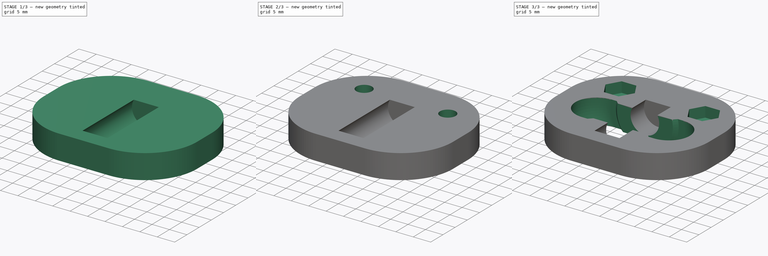
[diagram: build sequence overview — one tinted view per stage of 3, left to right]
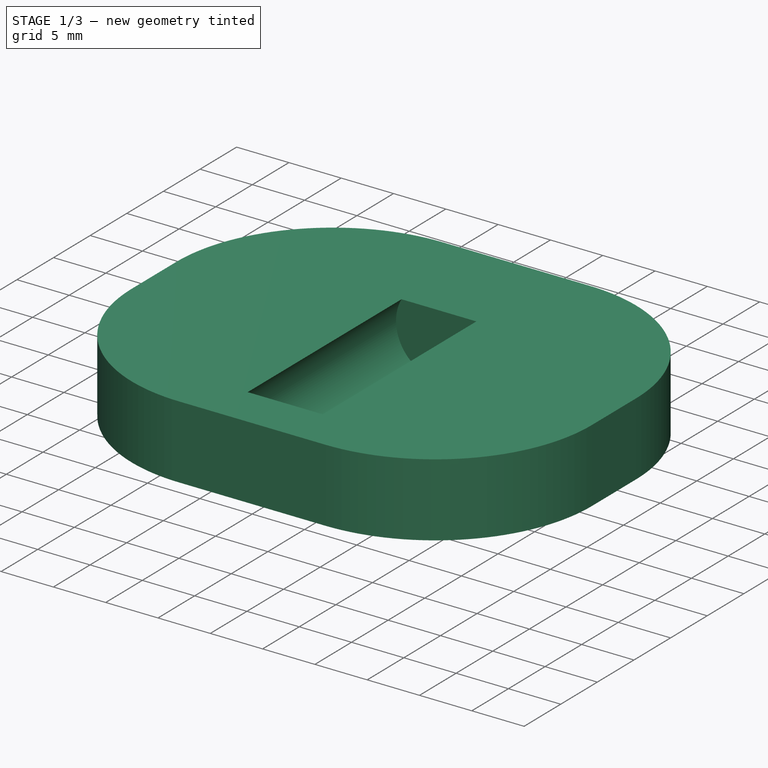
[diagram: stage 1 of 3 — iso view after this stage's code; geometry added in this stage tinted green]
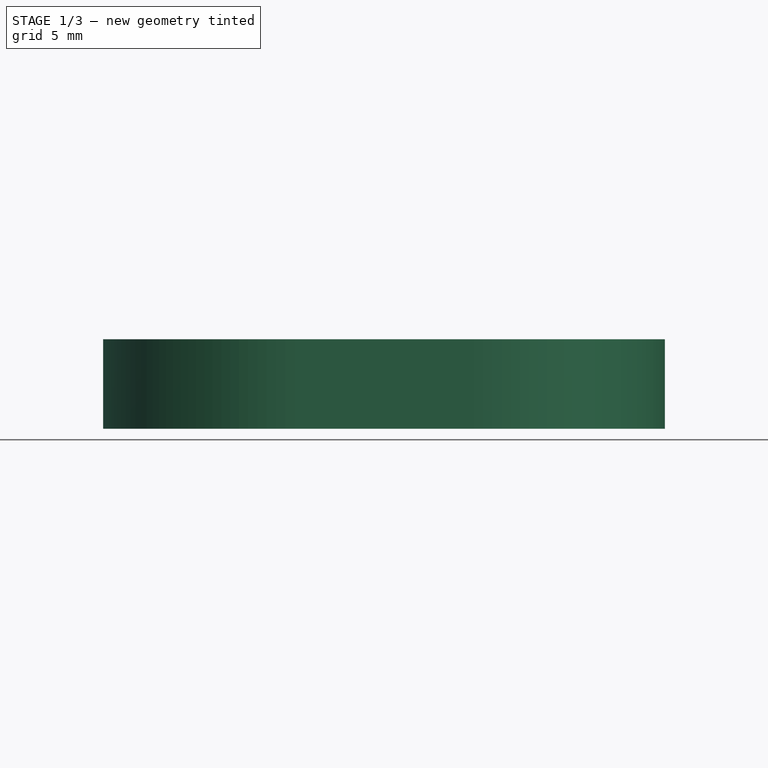
[diagram: stage 1 of 3 — front view after this stage's code; geometry added in this stage tinted green]
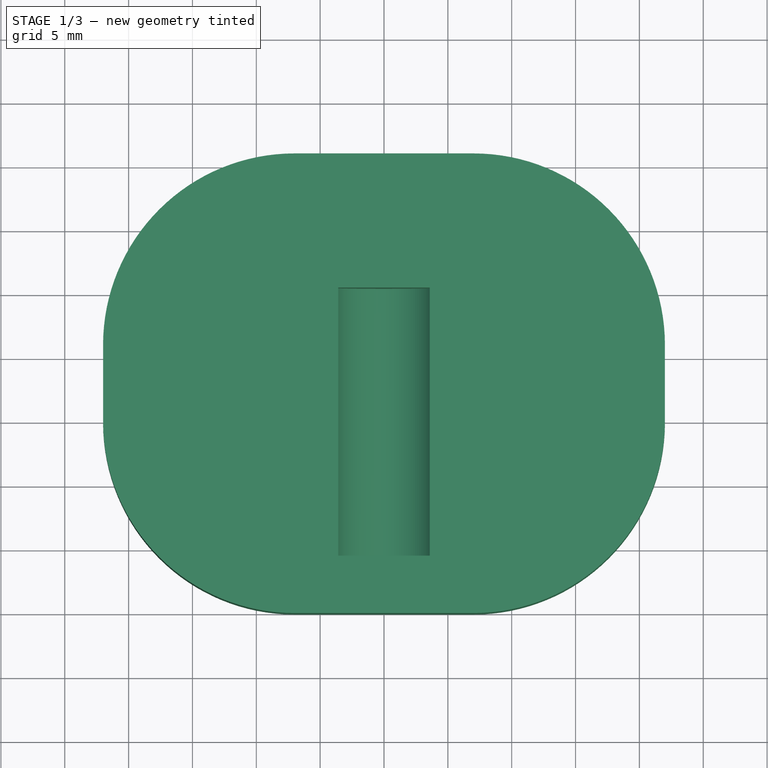
[diagram: stage 1 of 3 — top view after this stage's code; geometry added in this stage tinted green]
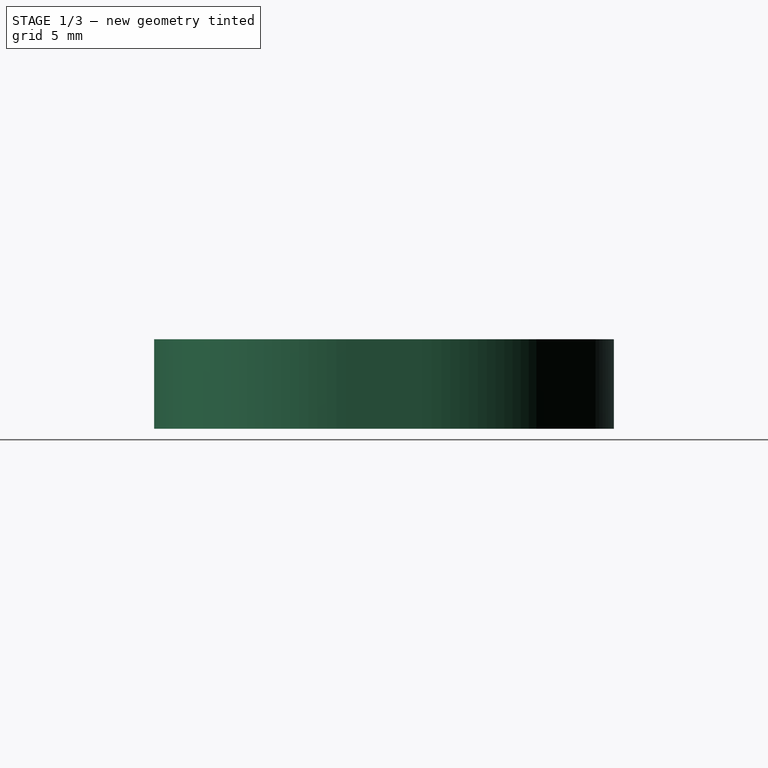
[diagram: stage 1 of 3 — right view after this stage's code; geometry added in this stage tinted green]
FCSTD DOCUMENT  (FreeCAD 0.20R29177 +426 (Git))
Label: TableRollerBase
License: All rights reserved
LicenseURL: http://en.wikipedia.org/wiki/All_rights_reserved
objects: Sketcher::SketchObject×5, App::DocumentObjectGroup×3, PartDesign::CoordinateSystem×2, PartDesign::Pocket×2, App::FeaturePython×1, PartDesign::Pad×1, PartDesign::Hole×1, PartDesign::Groove×1, PartDesign::Body×1, App::Part×1
note: 18 computed .brp shape members not serialized (recipe doc carries the construction recipe); baked Part::Feature solids carry a one-line shape summary decoded from their .brp
EXTERNAL_REF file=Params.FCStd obj=Spreadsheet

FEATURE [App::DocumentObjectGroup] Parts
FEATURE [PartDesign::CoordinateSystem] LCS_Origin
  AttacherType = Attacher::AttachEngine3D
  MapMode = 2
  Support = -> [X_Axis]
FEATURE [App::FeaturePython] Variables  # WARN: FeaturePython — macro-defined, semantics opaque (R4)
  Type = App::PropertyContainer
FEATURE [App::DocumentObjectGroup] Constraints
FEATURE [App::DocumentObjectGroup] Configurations
FEATURE [Sketcher::SketchObject] Sketch
  AttachmentOffset = pos=(0,0,5) rot=(0,0,1;0rad)
  FullyConstrained = true
  MapMode = 5
  Placement = pos=(0,0,5) rot=(0,0,1;0rad)
  Support = -> [XY_Plane001]
  expr: .AttachmentOffset.Base.z = <<AxleSketch>>.Constraints.AxleOffset
  sketch-geometry (8):
    g0: ArcOfCircle CenterX=10.5 CenterY=1e-16 CenterZ=0 NormalX=0 NormalY=0 NormalZ=1 AngleXU=0 Radius=6 StartAngle=4.71239 EndAngle=7.85398
    g1: LineSegment StartX=0 StartY=5 StartZ=0 EndX=0 EndY=-5 EndZ=0
    g2: LineSegment StartX=0 StartY=5 StartZ=0 EndX=8 EndY=5 EndZ=0
    g3: LineSegment StartX=0 StartY=-5 StartZ=0 EndX=8 EndY=-5 EndZ=0
    g4: LineSegment StartX=8 StartY=-5 StartZ=0 EndX=9 EndY=-6 EndZ=0
    g5: LineSegment StartX=8 StartY=5 StartZ=0 EndX=9 EndY=6 EndZ=0
    g6: LineSegment StartX=9 StartY=6 StartZ=0 EndX=10.5 EndY=6 EndZ=0
    g7: LineSegment StartX=9 StartY=-6 StartZ=0 EndX=10.5 EndY=-6 EndZ=0
  constraints (22):
    c: DistanceX(g-1,g0) = 10.5
    c: PointOnObject(g1,g-2)
    c: Symmetric(g1,g1,g-1)
    c: Coincident(g2,g1)
    c: Horizontal(g2)
    c: Coincident(g3,g1)
    c: Horizontal(g3)
    c: Coincident(g4,g3)
    c: Coincident(g5,g2)
    c: Coincident(g6,g5)
    c: Horizontal(g6)
    c: Coincident(g7,g4)
    c: Horizontal(g7)
    c: Tangent(g0,g7) = -1.5708
    c: Tangent(g0,g6) = 1.5708
    c: Equal(g5,g4)
    c: Angle(g4,g-1) = 0.785398
    c: Equal(g7,g6)
    c: Equal(g2,g3)
    c: DistanceY(g1,g1) = 10
    c: DistanceY(g4,g5) = 12
    c: DistanceX(g2,g2) = 8
FEATURE [Sketcher::SketchObject] Sketch001
  FullyConstrained = true
  MapMode = 5
  Support = -> [XY_Plane001]
  sketch-geometry (11):
    g0: ArcOfCircle CenterX=-7 CenterY=6 CenterZ=0 NormalX=0 NormalY=0 NormalZ=1 AngleXU=0 Radius=15 StartAngle=1.5708 EndAngle=3.14159
    g1: LineSegment StartX=-7 StartY=21 StartZ=0 EndX=7 EndY=21 EndZ=0
    g2: ArcOfCircle CenterX=7 CenterY=6 CenterZ=0 NormalX=0 NormalY=0 NormalZ=1 AngleXU=0 Radius=15 StartAngle=1e-16 EndAngle=1.5708
    g3: LineSegment StartX=22 StartY=6 StartZ=0 EndX=22 EndY=-4.4e-15 EndZ=0
    g4: ArcOfCircle CenterX=7 CenterY=-4e-16 CenterZ=0 NormalX=0 NormalY=0 NormalZ=1 AngleXU=0 Radius=15 StartAngle=4.71239 EndAngle=6.28319
    g5: LineSegment StartX=7 StartY=-15 StartZ=0 EndX=-7 EndY=-15 EndZ=0
    g6: ArcOfCircle CenterX=-7 CenterY=-3e-16 CenterZ=0 NormalX=0 NormalY=0 NormalZ=1 AngleXU=0 Radius=15 StartAngle=3.14159 EndAngle=4.71239
    g7: LineSegment StartX=-22 StartY=-5.1e-15 StartZ=0 EndX=-22 EndY=6 EndZ=0
    g8: GeomPoint X=-22 Y=21 Z=0
    g9: GeomPoint X=22 Y=-15 Z=0
    g10: GeomPoint X=0 Y=-15 Z=0
  constraints (25):
    c: Tangent(g0,g1) = 1.5708
    c: Tangent(g1,g2) = 1.5708
    c: Tangent(g2,g3) = 1.5708
    c: Tangent(g3,g4) = 1.5708
    c: Tangent(g4,g5) = 1.5708
    c: Tangent(g5,g6) = 1.5708
    c: Tangent(g6,g7) = 1.5708
    c: Tangent(g7,g0) = 1.5708
    c: Horizontal(g1)
    c: Horizontal(g5)
    c: Vertical(g3)
    c: Vertical(g7)
    c: Equal(g0,g2)
    c: Equal(g2,g4)
    c: Equal(g4,g6)
    c: PointOnObject(g8,g1)
    c: PointOnObject(g8,g7)
    c: PointOnObject(g9,g3)
    c: PointOnObject(g9,g5)
    c: DistanceY(g4,g-1) = 15  'BaseBackOffset'
    c: PointOnObject(g10,g-2)
    c: Symmetric(g4,g5,g10)
    c: Radius(g2) = 15
    c: DistanceX(g0,g2) = 44  'BaseWidth'
    c: DistanceY(g5,g0) = 36
FEATURE [Sketcher::SketchObject] Sketch002  label="AxleSketch"
  FullyConstrained = true
  MapMode = 5
  Placement = pos=(0,0,0) rot=(1,0,0;1.5708rad)
  Support = -> [XZ_Plane001]
  expr: .Constraints.AxleOffset = <<Base>>.Length - 2mm
  sketch-geometry (1):
    g0: Circle CenterX=0 CenterY=5 CenterZ=0 NormalX=0 NormalY=0 NormalZ=1 AngleXU=0 Radius=4.1
  constraints (3):
    c: PointOnObject(g0,g-2)
    c: Diameter(g0) = 8.2
    c: DistanceY(g-1,g0) = 5  'AxleOffset'
FEATURE [Sketcher::SketchObject] Sketch003
  AttachmentOffset = pos=(12,12,0) rot=(0,0,1;0rad)
  FullyConstrained = true
  MapMode = 5
  Placement = pos=(12,12,0) rot=(0,0,1;0rad)
  Support = -> [XY_Plane001]
  expr: .AttachmentOffset.Base.x = <<Params>>#<<Params>>.TableRollerMountHoleSpacing / 2
  expr: .AttachmentOffset.Base.y = <<Params>>#<<Params>>.TableRollerMountHoleOffset
  expr: Constraints[4] = <<Params>>#<<Params>>.TableRollerMountHoleSpacing
  sketch-geometry (2):
    g0: Circle CenterX=0 CenterY=0 CenterZ=0 NormalX=0 NormalY=0 NormalZ=1 AngleXU=0 Radius=1.5
    g1: Circle CenterX=-24 CenterY=0 CenterZ=0 NormalX=0 NormalY=0 NormalZ=1 AngleXU=0 Radius=1.5
  constraints (5):
    c: Coincident(g0,g-1)
    c: Diameter(g0) = 3
    c: PointOnObject(g1,g-1)
    c: Equal(g1,g0)
    c: DistanceX(g1,g0) = 24
FEATURE [Sketcher::SketchObject] Sketch004
  AttachmentOffset = pos=(0,0,4) rot=(0,0,1;0rad)
  FullyConstrained = true
  MapMode = 2
  Placement = pos=(12,12,4) rot=(0,0,1;0rad)
  Support = -> [Sketch003]
  expr: .AttachmentOffset.Base.z = <<Base>>.Length - 3mm
  expr: Constraints[40] = <<Params>>#<<Params>>.TableRollerMountHoleSpacing
  sketch-geometry (14):
    g0: LineSegment StartX=4.21466 StartY=0 StartZ=0 EndX=2.10733 EndY=3.65 EndZ=0
    g1: LineSegment StartX=2.10733 StartY=3.65 StartZ=0 EndX=-2.10733 EndY=3.65 EndZ=0
    g2: LineSegment StartX=-2.10733 StartY=3.65 StartZ=0 EndX=-4.21466 EndY=-1.3e-15 EndZ=0
    g3: LineSegment StartX=-4.21466 StartY=-1.3e-15 StartZ=0 EndX=-2.10733 EndY=-3.65 EndZ=0
    g4: LineSegment StartX=-2.10733 StartY=-3.65 StartZ=0 EndX=2.10733 EndY=-3.65 EndZ=0
    g5: LineSegment StartX=2.10733 StartY=-3.65 StartZ=0 EndX=4.21466 EndY=0 EndZ=0
    g6: Circle CenterX=0 CenterY=0 CenterZ=0 NormalX=0 NormalY=0 NormalZ=1 AngleXU=0 Radius=4.21466
    g7: LineSegment StartX=-19.7853 StartY=0 StartZ=0 EndX=-21.8927 EndY=3.65 EndZ=0
    g8: LineSegment StartX=-21.8927 StartY=3.65 StartZ=0 EndX=-26.1073 EndY=3.65 EndZ=0
    g9: LineSegment StartX=-26.1073 StartY=3.65 StartZ=0 EndX=-28.2147 EndY=-1.2e-14 EndZ=0
    g10: LineSegment StartX=-28.2147 StartY=-1.2e-14 StartZ=0 EndX=-26.1073 EndY=-3.65 EndZ=0
    g11: LineSegment StartX=-26.1073 StartY=-3.65 StartZ=0 EndX=-21.8927 EndY=-3.65 EndZ=0
    g12: LineSegment StartX=-21.8927 StartY=-3.65 StartZ=0 EndX=-19.7853 EndY=0 EndZ=0
    g13: Circle CenterX=-24 CenterY=0 CenterZ=0 NormalX=0 NormalY=0 NormalZ=1 AngleXU=0 Radius=4.21466
  constraints (33):
    c: Coincident(g0,g1)
    c: Coincident(g1,g2)
    c: Coincident(g2,g3)
    c: Coincident(g3,g4)
    c: Coincident(g4,g5)
    c: Coincident(g5,g0)
    c: Equal(g0, g1-g5) x5
    c: PointOnObject(g0,g6)
    c: PointOnObject(g1,g6)
    c: PointOnObject(g2,g6)
    c: PointOnObject(g3,g6)
    c: PointOnObject(g4,g6)
    c: PointOnObject(g5,g6)
    c: Coincident(g6,g-1)
    c: Distance(g4,g0) = 7.3
    c: PointOnObject(g0,g-1)
    c: Coincident(g7,g8)
    c: Coincident(g8,g9)
    c: Coincident(g9,g10)
    c: Coincident(g10,g11)
    c: Coincident(g11,g12)
    c: Coincident(g12,g7)
    c: Equal(g7, g8-g12) x5
    c: PointOnObject(g7,g13)
    c: PointOnObject(g8,g13)
    c: PointOnObject(g9,g13)
    c: PointOnObject(g10,g13)
    c: PointOnObject(g11,g13)
    c: PointOnObject(g12,g13)
    c: PointOnObject(g13,g-1)
    c: PointOnObject(g7,g-1)
    c: Equal(g8,g1)
    c: DistanceX(g13,g6) = 24
FEATURE [PartDesign::CoordinateSystem] LCS_Axle
  AttacherType = Attacher::AttachEngine3D
  AttachmentOffset = pos=(0,0,5) rot=(0,0,1;0rad)
  MapMode = 2
  Placement = pos=(0,0,5) rot=(0,0,1;0rad)
  Support = -> [LCS_Origin]
  expr: .AttachmentOffset.Base.z = <<AxleSketch>>.Constraints.AxleOffset
FEATURE [PartDesign::Pad] Pad  label="Base"
  Direction = (0,0,1)
  Length = 7
  Length2 = 10
  Profile = -> Sketch001
  ReferenceAxis = -> Sketch001 [N_Axis]
  Type = 0
FEATURE [PartDesign::Pocket] Pocket001  label="RollerAxle"
  BaseFeature = -> Pad
  Direction = (0,1,2e-16)
  Length = 21
  Length2 = 5
  Midplane = true
  Profile = -> Sketch002
  ReferenceAxis = -> Sketch002 [N_Axis]
  Type = 0
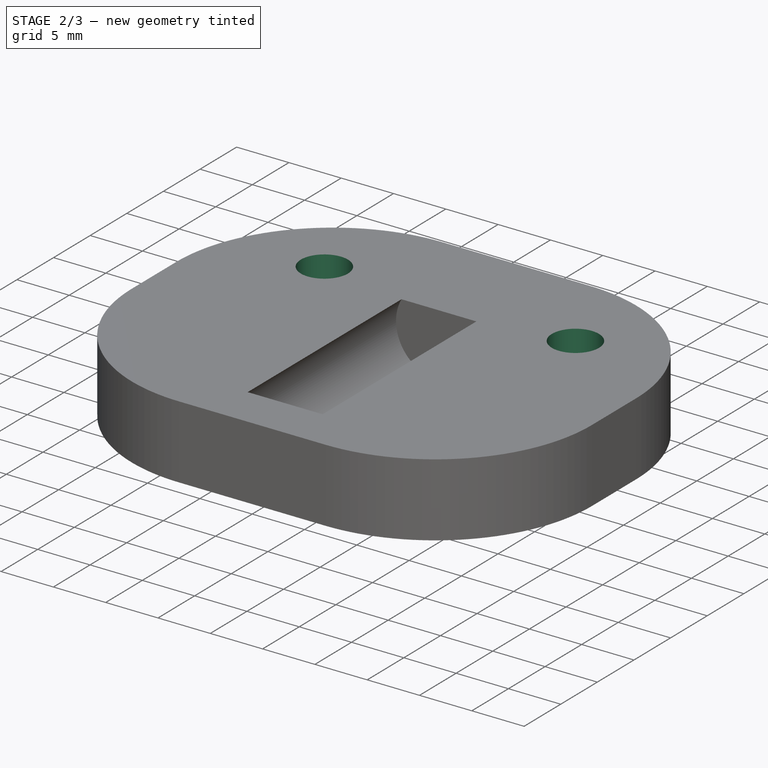
[diagram: stage 2 of 3 — iso view after this stage's code; geometry added in this stage tinted green]
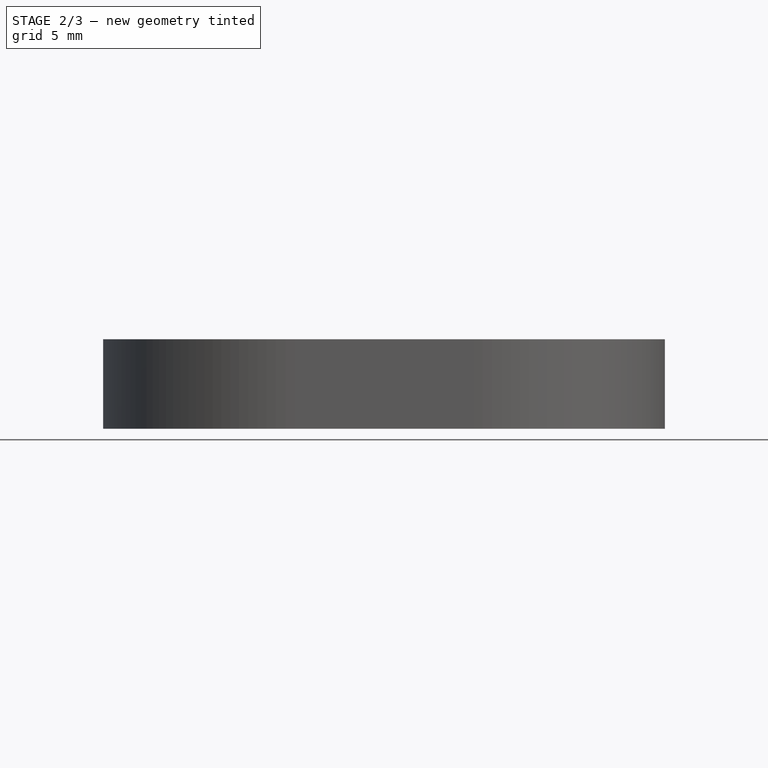
[diagram: stage 2 of 3 — front view after this stage's code; geometry added in this stage tinted green]
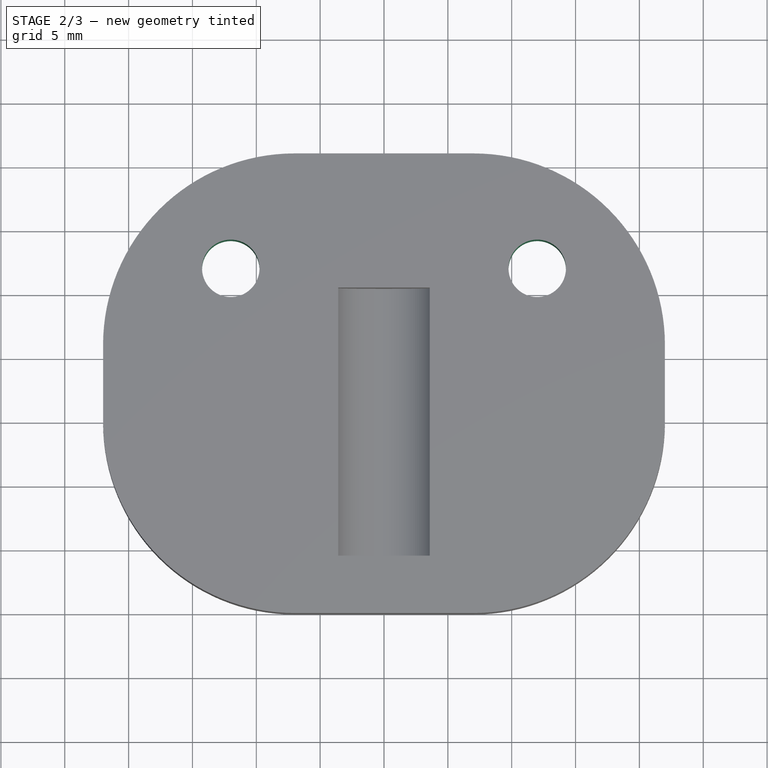
[diagram: stage 2 of 3 — top view after this stage's code; geometry added in this stage tinted green]
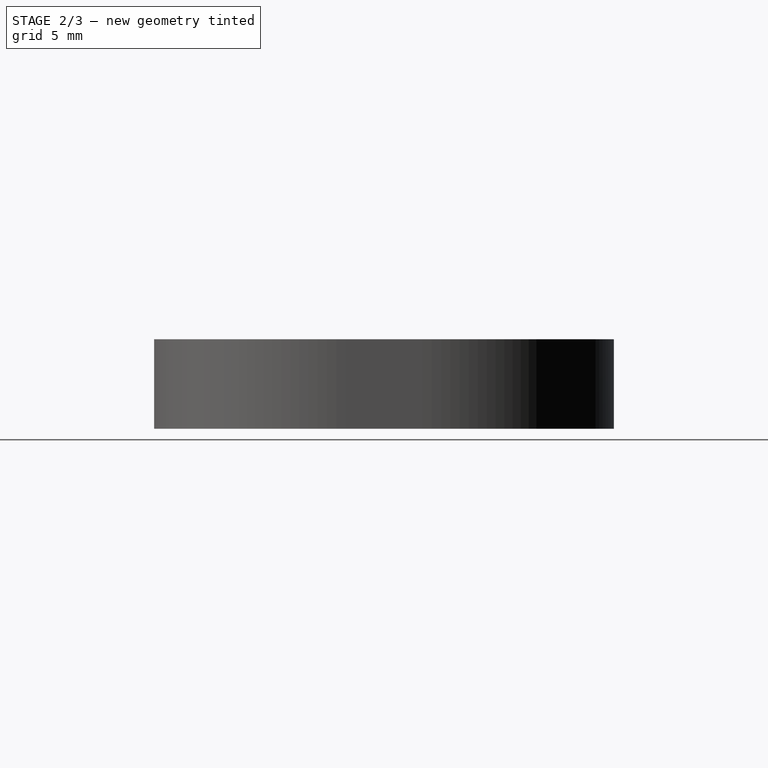
[diagram: stage 2 of 3 — right view after this stage's code; geometry added in this stage tinted green]
FEATURE [PartDesign::Hole] Hole  label="BaseMountHole"
  BaseFeature = -> Pocket001
  CustomThreadClearance = 0
  Depth = 154.21
  DepthType = 1
  Diameter = 4.5
  DrillForDepth = false
  DrillPoint = 1
  DrillPointAngle = 118
  HoleCutCountersinkAngle = 90
  HoleCutCustomValues = false
  HoleCutDepth = 0
  HoleCutDiameter = 6.1
  HoleCutType = 0
  ModelThread = false
  Profile = -> Sketch003
  Reversed = true
  Tapered = false
  TaperedAngle = 90
  ThreadClass = 0
  ThreadDepth = 154.21
  ThreadDepthType = 0
  ThreadDirection = 0
  ThreadFit = 0
  ThreadSize = 11
  ThreadType = 1
  Threaded = false
  UseCustomThreadClearance = false
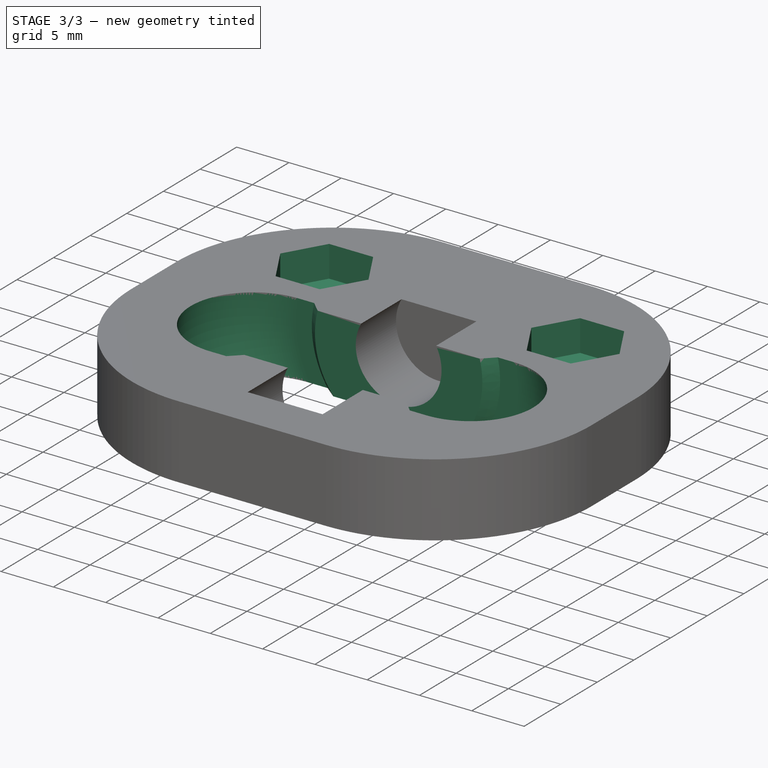
[diagram: stage 3 of 3 — iso view after this stage's code; geometry added in this stage tinted green]
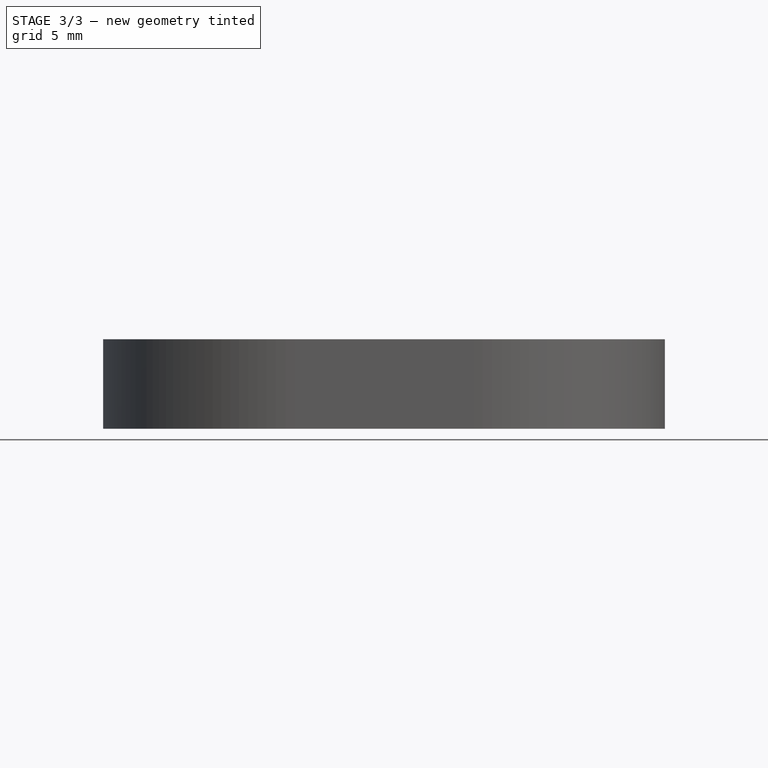
[diagram: stage 3 of 3 — front view after this stage's code; geometry added in this stage tinted green]
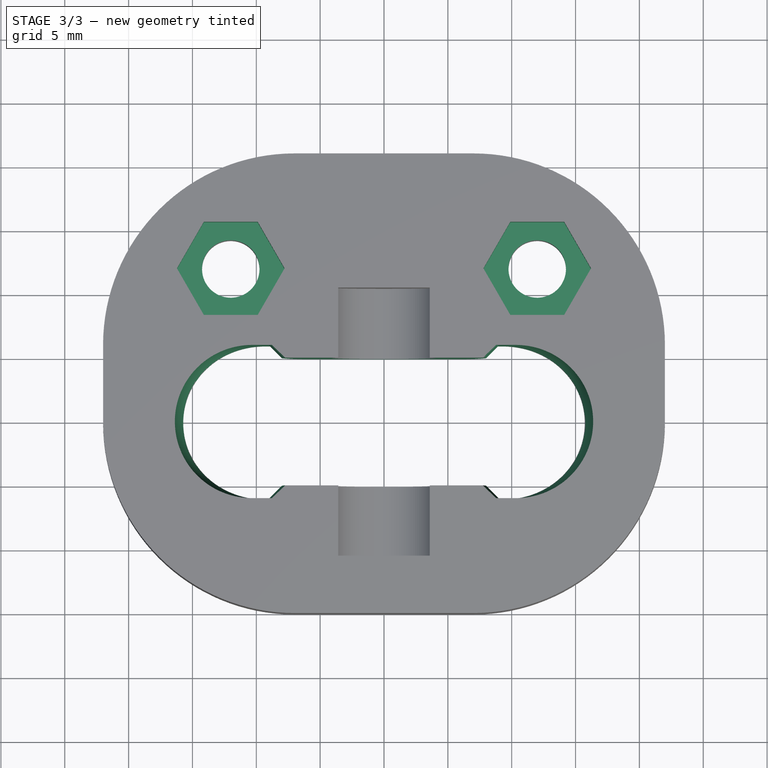
[diagram: stage 3 of 3 — top view after this stage's code; geometry added in this stage tinted green]
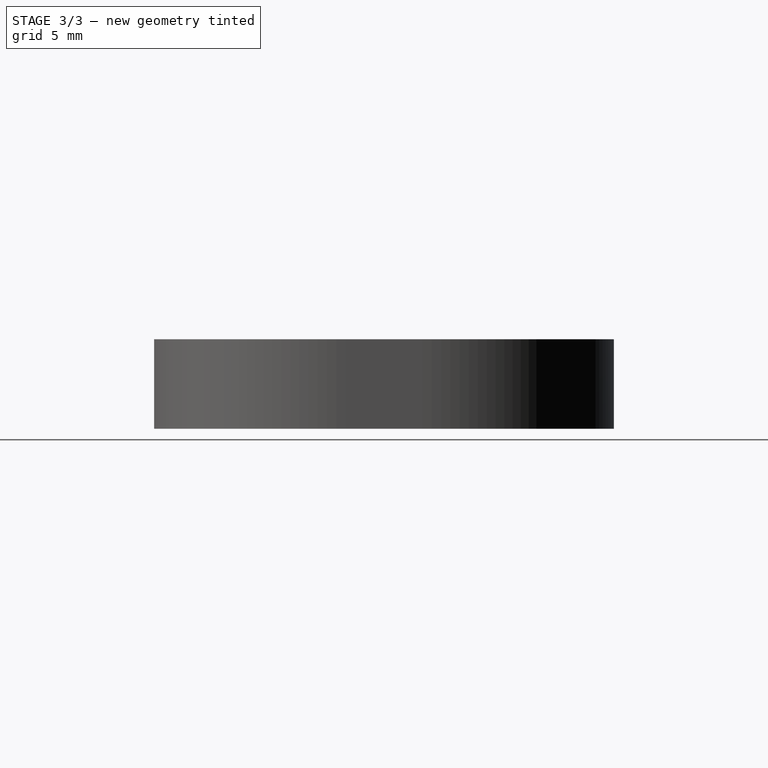
[diagram: stage 3 of 3 — right view after this stage's code; geometry added in this stage tinted green]
FEATURE [PartDesign::Pocket] Pocket002  label="BaseMountNutPocket"
  BaseFeature = -> Hole
  Direction = (0,0,-1)
  Length = 5
  Length2 = 5
  Profile = -> Sketch004
  ReferenceAxis = -> Sketch004 [N_Axis]
  Reversed = true
  Type = 1
FEATURE [PartDesign::Groove] Groove  label="RollerSlot"
  Angle = 360
  Axis = (0,1,0)
  Base = (0,0,5)
  BaseFeature = -> Pocket002
  Profile = -> Sketch
  ReferenceAxis = -> Sketch [V_Axis]
FEATURE [PartDesign::Body] Body
  Group = -> [Pad,Sketch,Sketch001,Sketch002,Pocket001,Sketch003,Hole,Sketch004,Pocket002,Groove]
  Origin = -> Origin001
  Tip = -> Groove
FEATURE [App::Part] Assembly
  AssemblyType = Part::Link
  Group = -> [LCS_Origin,Variables,Constraints,Configurations,Body,LCS_Axle]
  Origin = -> Origin
  Type = Assembly
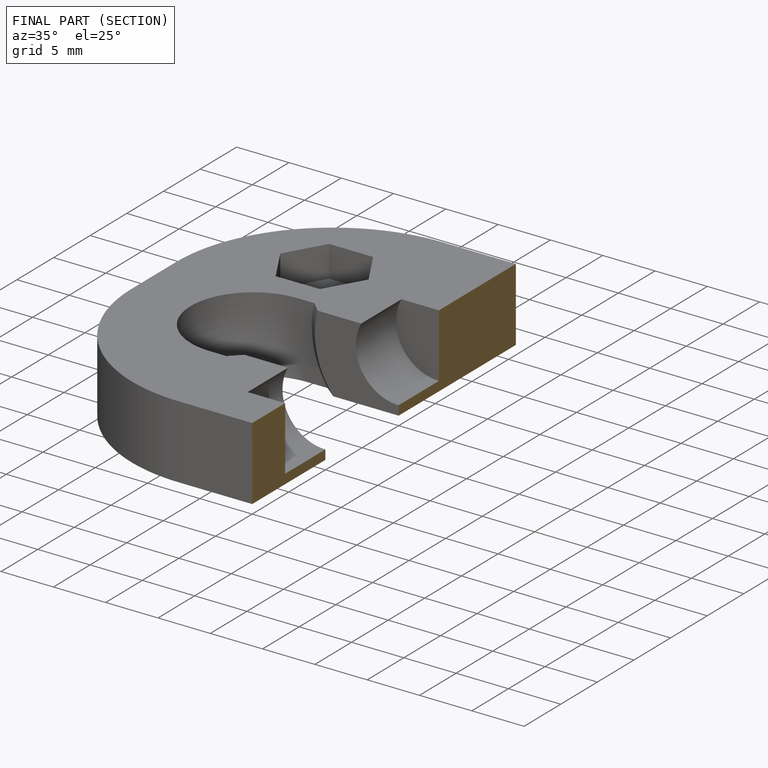
[diagram: finished part — half-section view (interior)]
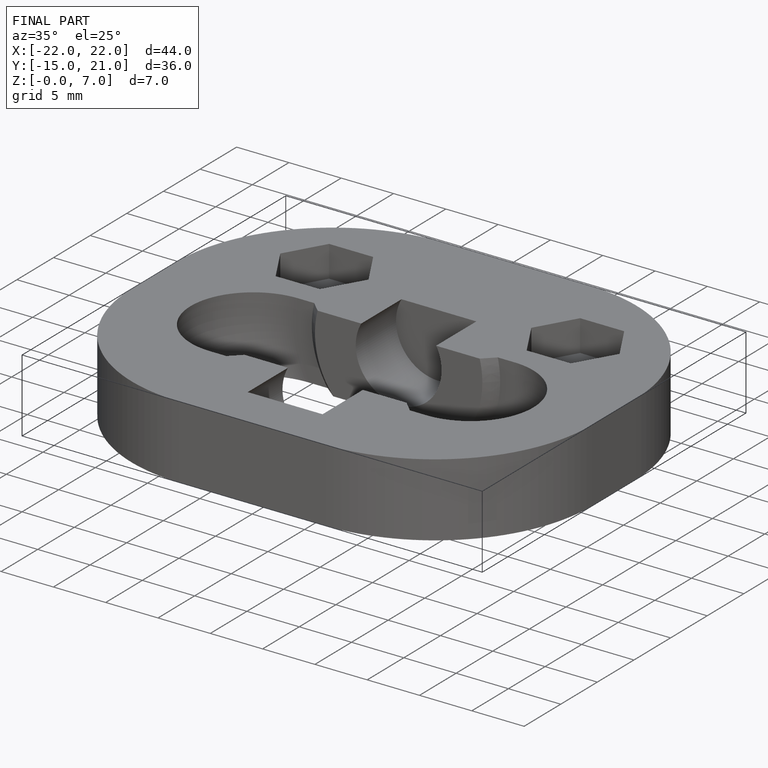
[diagram: finished part — iso view with bounding-box wireframe]
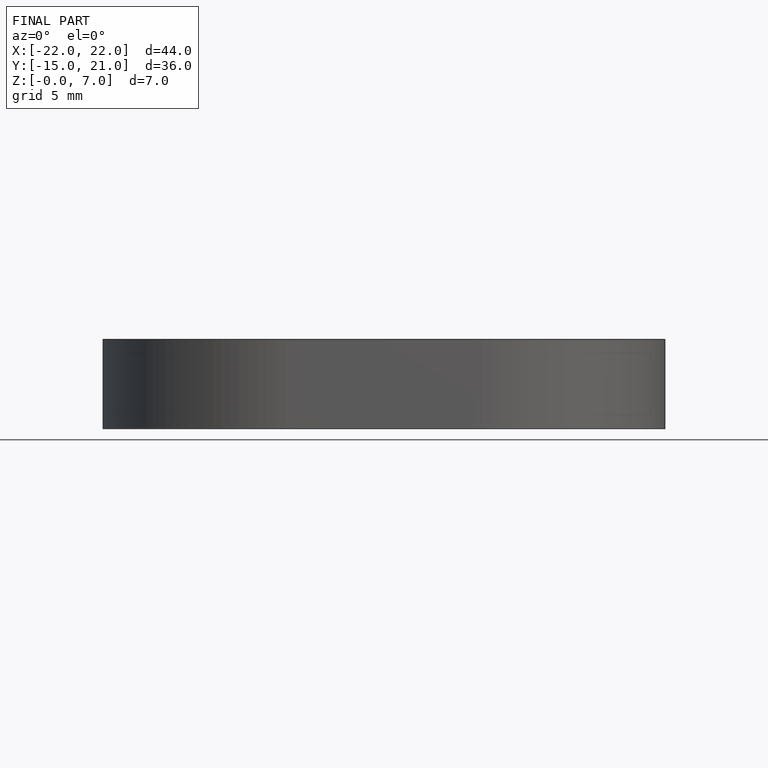
[diagram: finished part — front view with bounding-box wireframe]
